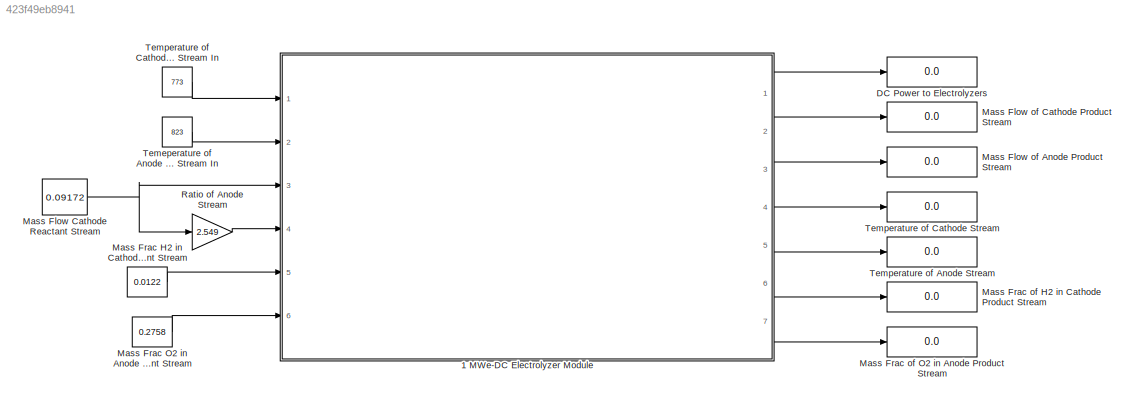
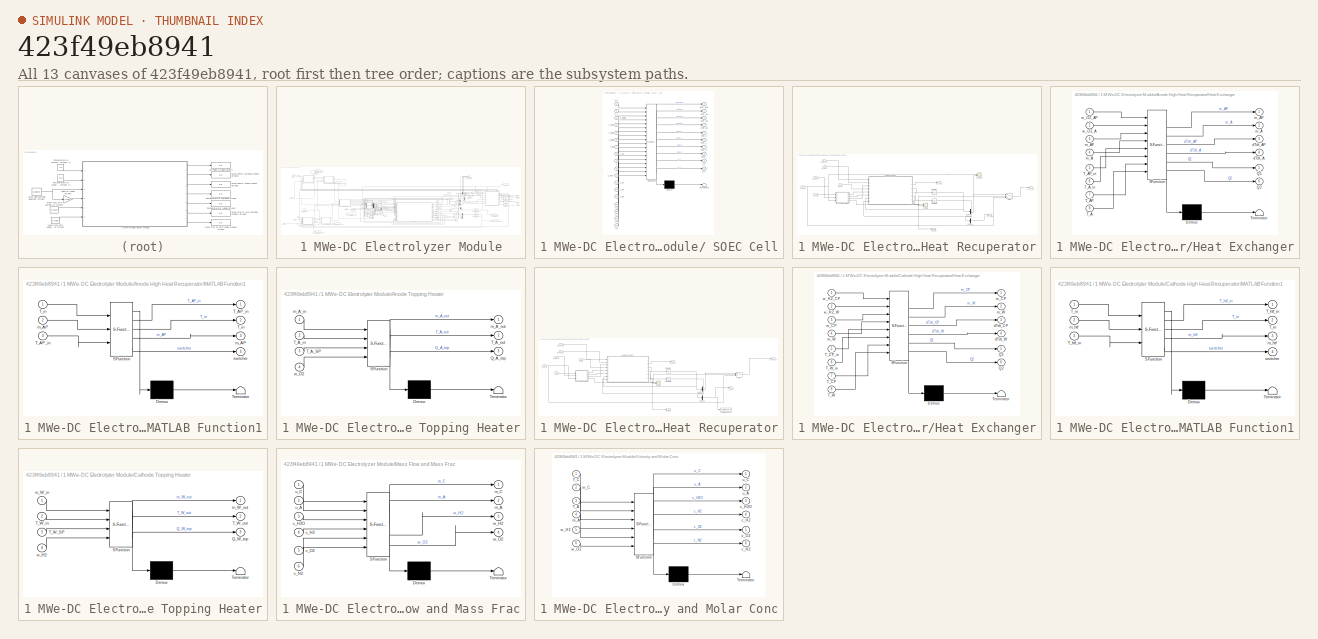
[diagram: thumbnail index - all 13 canvases of the model, root first then tree order]
MODEL slx_423f49eb8941
KIND model
CONFIG AbsTol = auto
CONFIG EnableMultiTasking = off
CONFIG FixedStep = auto
CONFIG MaxStep = auto
CONFIG MinStep = auto
CONFIG RelTol = 1e-3
CONFIG SampleTimeConstraint = Unconstrained
CONFIG SolverName = ode15s
CONFIG StartTime = 0.0
CONFIG StopTime = 3600*nhrssim
WORKSPACE source: external: MAT-File  (data not in archive)
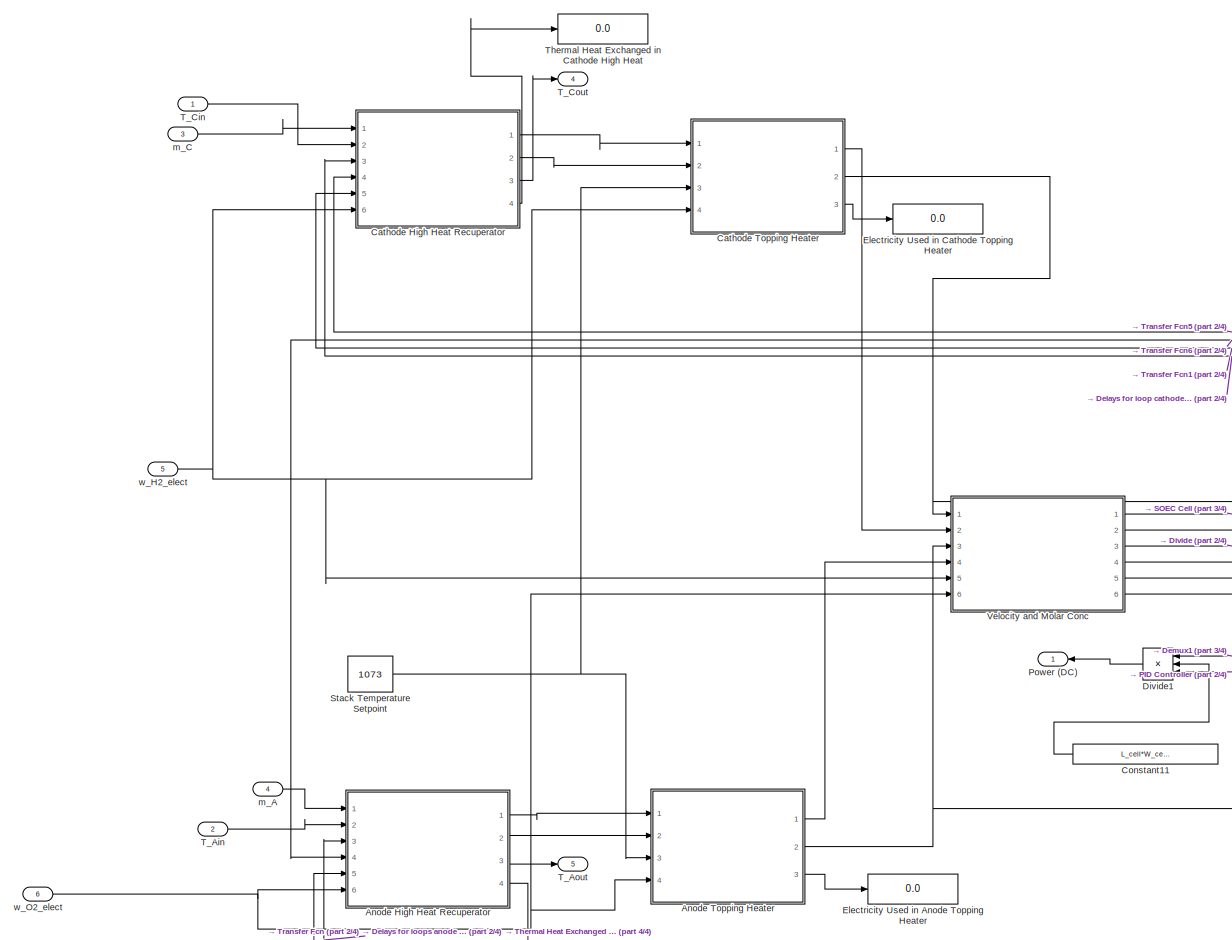
[diagram: 1 MWe-DC Electrolyzer Module - part 1/4, left side, full height]
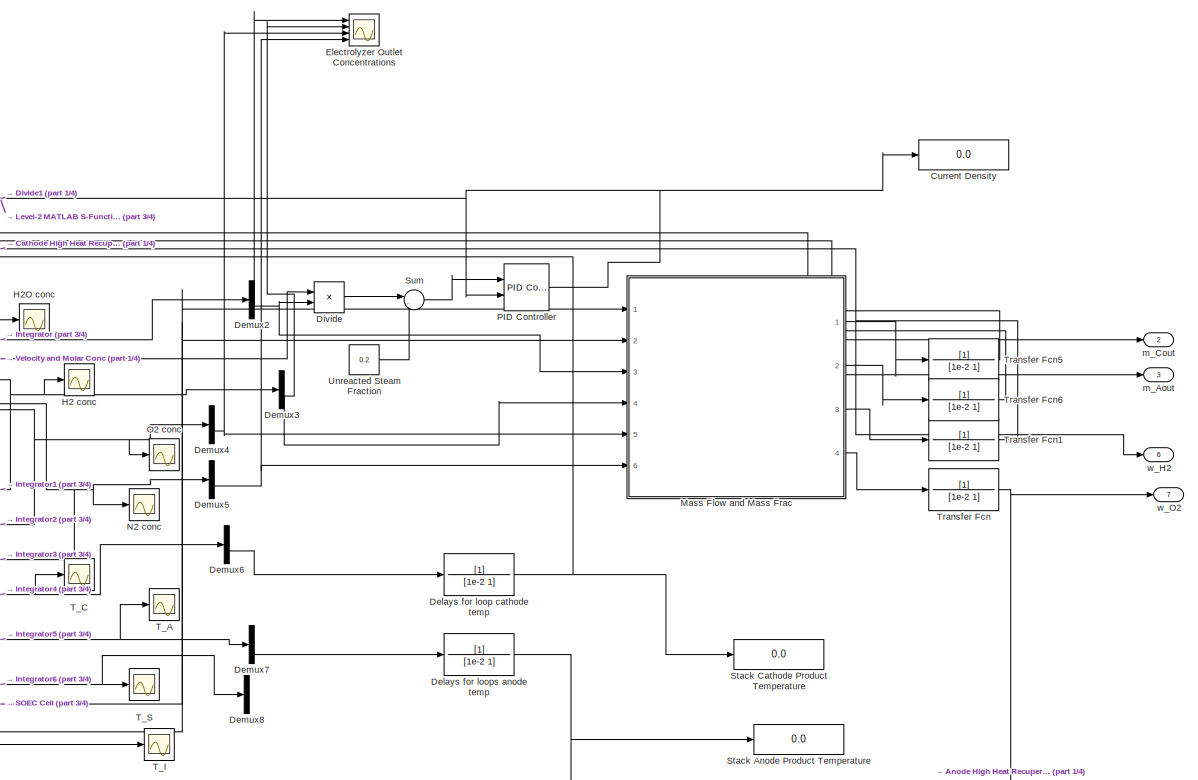
[diagram: 1 MWe-DC Electrolyzer Module - part 2/4, middle right region]
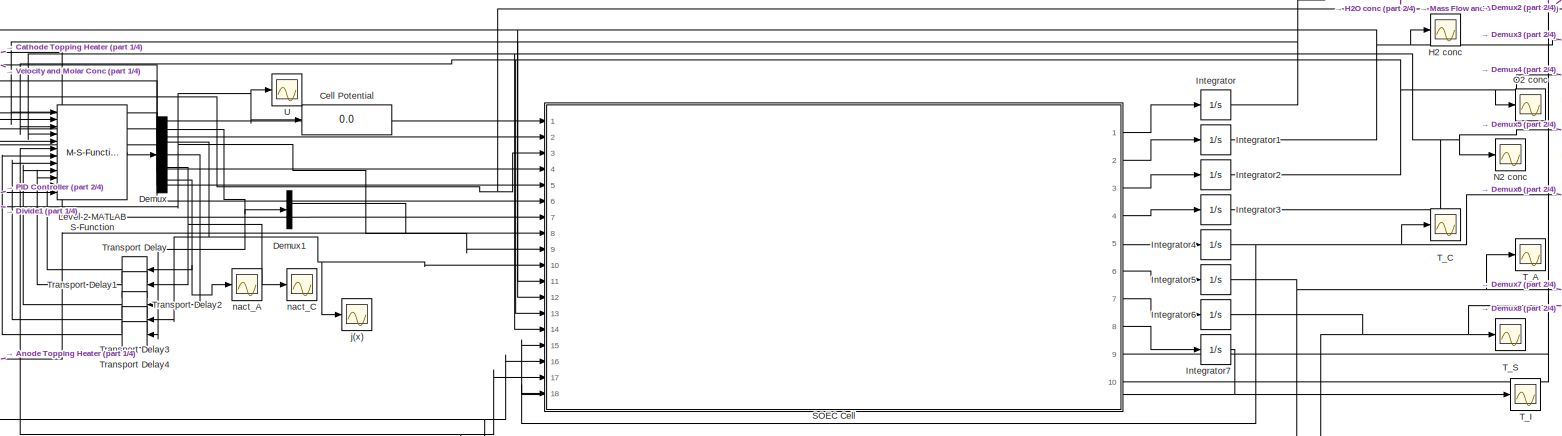
[diagram: 1 MWe-DC Electrolyzer Module - part 3/4, central region]
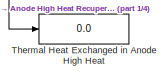
[diagram: 1 MWe-DC Electrolyzer Module - part 4/4, bottom left region]
BLOCK [SubSystem] 1 MWe-DC Electrolyzer Module
  Ports = [6, 7]
  RequestExecContextInheritance = off
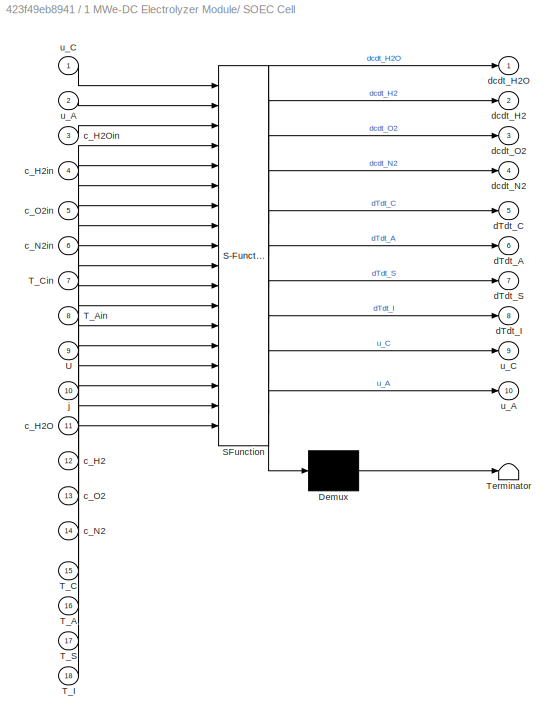
BLOCK [SubSystem] 1 MWe-DC Electrolyzer Module/ SOEC Cell
  ErrorFcn = Stateflow.Translate.translate
  PermitHierarchicalResolution = ExplicitOnly
  Ports = [18, 10]
  RequestExecContextInheritance = off
  SFBlockType = MATLAB Function
  TreatAsAtomicUnit = on
BLOCK [Demux] 1 MWe-DC Electrolyzer Module/ SOEC Cell/ Demux 
  Outputs = 1
  Ports = [1, 1]
BLOCK [S-Function] 1 MWe-DC Electrolyzer Module/ SOEC Cell/ SFunction 
  EnableBusSupport = on
  FunctionName = sf_sfun
  Parameters = Cp_I,Cp_S,F,MM_H2,MM_H2O,MM_N2,MM_O2,dx_cell,eps_I,eps_S,h_A,h_C,h_I,h_S,k_A,k_C,lam_I,lam_S,n_cell,rho_I,rho_S,sig
  PortCounts = [18 11]
  Ports = [18, 11]
  SFcnIsStateOwnerBlock = off
  SFunctionDeploymentMode = off
  Tag = Stateflow S-Function 2
BLOCK [Terminator] 1 MWe-DC Electrolyzer Module/ SOEC Cell/ Terminator 
BLOCK [Inport] 1 MWe-DC Electrolyzer Module/ SOEC Cell/T_A
  Port = 16
BLOCK [Inport] 1 MWe-DC Electrolyzer Module/ SOEC Cell/T_Ain
  Port = 8
BLOCK [Inport] 1 MWe-DC Electrolyzer Module/ SOEC Cell/T_C
  Port = 15
BLOCK [Inport] 1 MWe-DC Electrolyzer Module/ SOEC Cell/T_Cin
  Port = 7
BLOCK [Inport] 1 MWe-DC Electrolyzer Module/ SOEC Cell/T_I
  Port = 18
BLOCK [Inport] 1 MWe-DC Electrolyzer Module/ SOEC Cell/T_S
  Port = 17
BLOCK [Inport] 1 MWe-DC Electrolyzer Module/ SOEC Cell/U
  Port = 9
BLOCK [Inport] 1 MWe-DC Electrolyzer Module/ SOEC Cell/c_H2
  Port = 12
BLOCK [Inport] 1 MWe-DC Electrolyzer Module/ SOEC Cell/c_H2O
  Port = 11
BLOCK [Inport] 1 MWe-DC Electrolyzer Module/ SOEC Cell/c_H2Oin
  Port = 3
BLOCK [Inport] 1 MWe-DC Electrolyzer Module/ SOEC Cell/c_H2in
  Port = 4
BLOCK [Inport] 1 MWe-DC Electrolyzer Module/ SOEC Cell/c_N2
  Port = 14
BLOCK [Inport] 1 MWe-DC Electrolyzer Module/ SOEC Cell/c_N2in
  Port = 6
BLOCK [Inport] 1 MWe-DC Electrolyzer Module/ SOEC Cell/c_O2
  Port = 13
BLOCK [Inport] 1 MWe-DC Electrolyzer Module/ SOEC Cell/c_O2in
  Port = 5
BLOCK [Outport] 1 MWe-DC Electrolyzer Module/ SOEC Cell/dTdt_A
  Port = 6
BLOCK [Outport] 1 MWe-DC Electrolyzer Module/ SOEC Cell/dTdt_C
  Port = 5
BLOCK [Outport] 1 MWe-DC Electrolyzer Module/ SOEC Cell/dTdt_I
  Port = 8
BLOCK [Outport] 1 MWe-DC Electrolyzer Module/ SOEC Cell/dTdt_S
  Port = 7
BLOCK [Outport] 1 MWe-DC Electrolyzer Module/ SOEC Cell/dcdt_H2
  Port = 2
BLOCK [Outport] 1 MWe-DC Electrolyzer Module/ SOEC Cell/dcdt_H2O
BLOCK [Outport] 1 MWe-DC Electrolyzer Module/ SOEC Cell/dcdt_N2
  Port = 4
BLOCK [Outport] 1 MWe-DC Electrolyzer Module/ SOEC Cell/dcdt_O2
  Port = 3
BLOCK [Inport] 1 MWe-DC Electrolyzer Module/ SOEC Cell/j
  Port = 10
BLOCK [Outport] 1 MWe-DC Electrolyzer Module/ SOEC Cell/u_A
  Port = 10
BLOCK [Inport] 1 MWe-DC Electrolyzer Module/ SOEC Cell/u_A 
  Port = 2
BLOCK [Outport] 1 MWe-DC Electrolyzer Module/ SOEC Cell/u_C
  Port = 9
BLOCK [Inport] 1 MWe-DC Electrolyzer Module/ SOEC Cell/u_C 
BLOCK [SubSystem] 1 MWe-DC Electrolyzer Module/Anode High Heat Recuperator
  Ports = [6, 4]
  RequestExecContextInheritance = off
BLOCK [Demux] 1 MWe-DC Electrolyzer Module/Anode High Heat Recuperator/Demux
  Outputs = [nhx_aHR-1 1]
  Ports = [1, 2]
BLOCK [Demux] 1 MWe-DC Electrolyzer Module/Anode High Heat Recuperator/Demux1
  Outputs = [1 nhx_aHR-1]
  Ports = [1, 2]
BLOCK [SubSystem] 1 MWe-DC Electrolyzer Module/Anode High Heat Recuperator/Heat Exchanger
  ErrorFcn = Stateflow.Translate.translate
  PermitHierarchicalResolution = ExplicitOnly
  Ports = [8, 6]
  RequestExecContextInheritance = off
  SFBlockType = MATLAB Function
  TreatAsAtomicUnit = on
BLOCK [Demux] 1 MWe-DC Electrolyzer Module/Anode High Heat Recuperator/Heat Exchanger/ Demux 
  Outputs = 1
  Ports = [1, 1]
BLOCK [S-Function] 1 MWe-DC Electrolyzer Module/Anode High Heat Recuperator/Heat Exchanger/ SFunction 
  EnableBusSupport = on
  FunctionName = sf_sfun
  Parameters = Acsflow_aHR,Anode_aHR,C1,Dtubei,Dtubeo,St,V_shell_aHR,V_tubes_aHR,ktube,m,nhx_aHR,ntubes,ttube
  PortCounts = [8 7]
  Ports = [8, 7]
  SFcnIsStateOwnerBlock = off
  SFunctionDeploymentMode = off
  Tag = Stateflow S-Function 8
BLOCK [Terminator] 1 MWe-DC Electrolyzer Module/Anode High Heat Recuperator/Heat Exchanger/ Terminator 
BLOCK [Outport] 1 MWe-DC Electrolyzer Module/Anode High Heat Recuperator/Heat Exchanger/Q1
  Port = 5
BLOCK [Outport] 1 MWe-DC Electrolyzer Module/Anode High Heat Recuperator/Heat Exchanger/Q2
  Port = 6
BLOCK [Inport] 1 MWe-DC Electrolyzer Module/Anode High Heat Recuperator/Heat Exchanger/T_A
  Port = 8
BLOCK [Inport] 1 MWe-DC Electrolyzer Module/Anode High Heat Recuperator/Heat Exchanger/T_AP
  Port = 7
BLOCK [Inport] 1 MWe-DC Electrolyzer Module/Anode High Heat Recuperator/Heat Exchanger/T_AP_in
  Port = 5
BLOCK [Inport] 1 MWe-DC Electrolyzer Module/Anode High Heat Recuperator/Heat Exchanger/T_A_in
  Port = 6
BLOCK [Outport] 1 MWe-DC Electrolyzer Module/Anode High Heat Recuperator/Heat Exchanger/dTdt_A
  Port = 4
BLOCK [Outport] 1 MWe-DC Electrolyzer Module/Anode High Heat Recuperator/Heat Exchanger/dTdt_AP
  Port = 3
BLOCK [Outport] 1 MWe-DC Electrolyzer Module/Anode High Heat Recuperator/Heat Exchanger/m_A
  Port = 2
BLOCK [Inport] 1 MWe-DC Electrolyzer Module/Anode High Heat Recuperator/Heat Exchanger/m_A 
  Port = 4
BLOCK [Outport] 1 MWe-DC Electrolyzer Module/Anode High Heat Recuperator/Heat Exchanger/m_AP
BLOCK [Inport] 1 MWe-DC Electrolyzer Module/Anode High Heat Recuperator/Heat Exchanger/m_AP 
  Port = 3
BLOCK [Inport] 1 MWe-DC Electrolyzer Module/Anode High Heat Recuperator/Heat Exchanger/w_O2_A
  Port = 2
BLOCK [Inport] 1 MWe-DC Electrolyzer Module/Anode High Heat Recuperator/Heat Exchanger/w_O2_AP
BLOCK [Integrator] 1 MWe-DC Electrolyzer Module/Anode High Heat Recuperator/Integrator
  InitialCondition = ones(nhx_aHR, 1)*(T_aSHout)
  Ports = [1, 1]
BLOCK [Integrator] 1 MWe-DC Electrolyzer Module/Anode High Heat Recuperator/Integrator1
  InitialCondition = ones(nhx_aHR, 1)*(T_aSHout)
  Ports = [1, 1]
BLOCK [SubSystem] 1 MWe-DC Electrolyzer Module/Anode High Heat Recuperator/MATLAB Function1
  ErrorFcn = Stateflow.Translate.translate
  PermitHierarchicalResolution = ExplicitOnly
  Ports = [3, 4]
  RequestExecContextInheritance = off
  SFBlockType = MATLAB Function
  TreatAsAtomicUnit = on
BLOCK [Demux] 1 MWe-DC Electrolyzer Module/Anode High Heat Recuperator/MATLAB Function1/ Demux 
  Outputs = 1
  Ports = [1, 1]
BLOCK [S-Function] 1 MWe-DC Electrolyzer Module/Anode High Heat Recuperator/MATLAB Function1/ SFunction 
  EnableBusSupport = on
  FunctionName = sf_sfun
  PortCounts = [3 5]
  Ports = [3, 5]
  SFcnIsStateOwnerBlock = off
  SFunctionDeploymentMode = off
  Tag = Stateflow S-Function 9
BLOCK [Terminator] 1 MWe-DC Electrolyzer Module/Anode High Heat Recuperator/MATLAB Function1/ Terminator 
BLOCK [Outport] 1 MWe-DC Electrolyzer Module/Anode High Heat Recuperator/MATLAB Function1/T_AP_in
BLOCK [Inport] 1 MWe-DC Electrolyzer Module/Anode High Heat Recuperator/MATLAB Function1/T_AP_in 
  Port = 3
BLOCK [Outport] 1 MWe-DC Electrolyzer Module/Anode High Heat Recuperator/MATLAB Function1/T_in
  Port = 2
BLOCK [Inport] 1 MWe-DC Electrolyzer Module/Anode High Heat Recuperator/MATLAB Function1/T_in 
BLOCK [Outport] 1 MWe-DC Electrolyzer Module/Anode High Heat Recuperator/MATLAB Function1/m_AP
  Port = 3
BLOCK [Inport] 1 MWe-DC Electrolyzer Module/Anode High Heat Recuperator/MATLAB Function1/m_AP 
  Port = 2
BLOCK [Outport] 1 MWe-DC Electrolyzer Module/Anode High Heat Recuperator/MATLAB Function1/switcher
  Port = 4
BLOCK [Outport] 1 MWe-DC Electrolyzer Module/Anode High Heat Recuperator/Q_aHR
  Port = 4
BLOCK [Scope] 1 MWe-DC Electrolyzer Module/Anode High Heat Recuperator/Scope
  Floating = off
  NumInputPorts = 2
  Ports = [2]
  ScopeSpecificationString = Simulink.scopes.TimeScopeBlockCfg('CurrentConfiguration', extmgr.ConfigurationSet(extmgr.Configuration('Core','General UI',true),extmgr.Configuration('Core','Source UI',true),extmgr.Configuration('Sources','WiredSimulink',true,'DataLoggingVariableName','ScopeData6'),extmgr.Configuration('Visuals','Time Domain',true,'SerializedDisplays',{struct('MinYLimReal','1.5098','MaxYLimReal','9.38009','YLabel...<+1467ch>
BLOCK [Scope] 1 MWe-DC Electrolyzer Module/Anode High Heat Recuperator/Scope5
  Floating = off
  NumInputPorts = 2
  Ports = [2]
  ScopeSpecificationString = Simulink.scopes.TimeScopeBlockCfg('CurrentConfiguration', extmgr.ConfigurationSet(extmgr.Configuration('Core','General UI',true),extmgr.Configuration('Core','Source UI',true),extmgr.Configuration('Sources','WiredSimulink',true,'DataLoggingVariableName','ScopeData3'),extmgr.Configuration('Visuals','Time Domain',true,'SerializedDisplays',{struct('MinYLimReal','498.51328','MaxYLimReal','1136.83186','...<+1471ch>
BLOCK [Switch] 1 MWe-DC Electrolyzer Module/Anode High Heat Recuperator/Switch
  Criteria = u2 > Threshold
  InputSameDT = off
  SaturateOnIntegerOverflow = off
BLOCK [Inport] 1 MWe-DC Electrolyzer Module/Anode High Heat Recuperator/T_AP_in
  Port = 3
BLOCK [Outport] 1 MWe-DC Electrolyzer Module/Anode High Heat Recuperator/T_AP_out
  Port = 3
BLOCK [Inport] 1 MWe-DC Electrolyzer Module/Anode High Heat Recuperator/T_A_in
  Port = 2
BLOCK [Outport] 1 MWe-DC Electrolyzer Module/Anode High Heat Recuperator/T_A_out
  Port = 2
BLOCK [Inport] 1 MWe-DC Electrolyzer Module/Anode High Heat Recuperator/m_AP_in 
  NameLocation = top
  Port = 4
BLOCK [Outport] 1 MWe-DC Electrolyzer Module/Anode High Heat Recuperator/m_A_out
BLOCK [Inport] 1 MWe-DC Electrolyzer Module/Anode High Heat Recuperator/m_Ain 
BLOCK [Inport] 1 MWe-DC Electrolyzer Module/Anode High Heat Recuperator/w_O2_A
  NameLocation = top
  Port = 6
BLOCK [Inport] 1 MWe-DC Electrolyzer Module/Anode High Heat Recuperator/w_O2_AP
  NameLocation = top
  Port = 5
BLOCK [SubSystem] 1 MWe-DC Electrolyzer Module/Anode Topping Heater
  ErrorFcn = Stateflow.Translate.translate
  PermitHierarchicalResolution = ExplicitOnly
  Ports = [4, 3]
  RequestExecContextInheritance = off
  SFBlockType = MATLAB Function
  TreatAsAtomicUnit = on
BLOCK [Demux] 1 MWe-DC Electrolyzer Module/Anode Topping Heater/ Demux 
  Outputs = 1
  Ports = [1, 1]
BLOCK [S-Function] 1 MWe-DC Electrolyzer Module/Anode Topping Heater/ SFunction 
  EnableBusSupport = on
  FunctionName = sf_sfun
  Parameters = eta_elec
  PortCounts = [4 4]
  Ports = [4, 4]
  SFcnIsStateOwnerBlock = off
  SFunctionDeploymentMode = off
  Tag = Stateflow S-Function 13
BLOCK [Terminator] 1 MWe-DC Electrolyzer Module/Anode Topping Heater/ Terminator 
BLOCK [Outport] 1 MWe-DC Electrolyzer Module/Anode Topping Heater/Q_A_top
  Port = 3
BLOCK [Inport] 1 MWe-DC Electrolyzer Module/Anode Topping Heater/T_A_SP
  Port = 3
BLOCK [Inport] 1 MWe-DC Electrolyzer Module/Anode Topping Heater/T_A_in
  Port = 2
BLOCK [Outport] 1 MWe-DC Electrolyzer Module/Anode Topping Heater/T_A_out
  Port = 2
BLOCK [Inport] 1 MWe-DC Electrolyzer Module/Anode Topping Heater/m_A_in
BLOCK [Outport] 1 MWe-DC Electrolyzer Module/Anode Topping Heater/m_A_out
BLOCK [Inport] 1 MWe-DC Electrolyzer Module/Anode Topping Heater/w_O2
  Port = 4
BLOCK [SubSystem] 1 MWe-DC Electrolyzer Module/Cathode High Heat Recuperator
  Ports = [6, 4]
  RequestExecContextInheritance = off
BLOCK [Demux] 1 MWe-DC Electrolyzer Module/Cathode High Heat Recuperator/Demux
  Outputs = [nhx_wHR-1 1]
  Ports = [1, 2]
BLOCK [Demux] 1 MWe-DC Electrolyzer Module/Cathode High Heat Recuperator/Demux1
  Outputs = [1 nhx_wHR-1]
  Ports = [1, 2]
BLOCK [SubSystem] 1 MWe-DC Electrolyzer Module/Cathode High Heat Recuperator/Heat Exchanger
  ErrorFcn = Stateflow.Translate.translate
  PermitHierarchicalResolution = ExplicitOnly
  Ports = [8, 6]
  RequestExecContextInheritance = off
  SFBlockType = MATLAB Function
  TreatAsAtomicUnit = on
BLOCK [Demux] 1 MWe-DC Electrolyzer Module/Cathode High Heat Recuperator/Heat Exchanger/ Demux 
  Outputs = 1
  Ports = [1, 1]
BLOCK [S-Function] 1 MWe-DC Electrolyzer Module/Cathode High Heat Recuperator/Heat Exchanger/ SFunction 
  EnableBusSupport = on
  FunctionName = sf_sfun
  Parameters = Acsflow_wHR,Anode_wHR,C1,Dtubei,Dtubeo,St,V_shell_wHR,V_tubes_wHR,ktube,m,nhx_wHR,ntubes,ttube
  PortCounts = [8 7]
  Ports = [8, 7]
  SFcnIsStateOwnerBlock = off
  SFunctionDeploymentMode = off
  Tag = Stateflow S-Function 6
BLOCK [Terminator] 1 MWe-DC Electrolyzer Module/Cathode High Heat Recuperator/Heat Exchanger/ Terminator 
BLOCK [Outport] 1 MWe-DC Electrolyzer Module/Cathode High Heat Recuperator/Heat Exchanger/Q1
  Port = 5
BLOCK [Outport] 1 MWe-DC Electrolyzer Module/Cathode High Heat Recuperator/Heat Exchanger/Q2
  Port = 6
BLOCK [Inport] 1 MWe-DC Electrolyzer Module/Cathode High Heat Recuperator/Heat Exchanger/T_CP
  Port = 7
BLOCK [Inport] 1 MWe-DC Electrolyzer Module/Cathode High Heat Recuperator/Heat Exchanger/T_CP_in
  Port = 5
BLOCK [Inport] 1 MWe-DC Electrolyzer Module/Cathode High Heat Recuperator/Heat Exchanger/T_W
  Port = 8
BLOCK [Inport] 1 MWe-DC Electrolyzer Module/Cathode High Heat Recuperator/Heat Exchanger/T_W_in
  Port = 6
BLOCK [Outport] 1 MWe-DC Electrolyzer Module/Cathode High Heat Recuperator/Heat Exchanger/dTdt_CP
  Port = 3
BLOCK [Outport] 1 MWe-DC Electrolyzer Module/Cathode High Heat Recuperator/Heat Exchanger/dTdt_W
  Port = 4
BLOCK [Outport] 1 MWe-DC Electrolyzer Module/Cathode High Heat Recuperator/Heat Exchanger/m_CP
BLOCK [Inport] 1 MWe-DC Electrolyzer Module/Cathode High Heat Recuperator/Heat Exchanger/m_CP 
  Port = 3
BLOCK [Outport] 1 MWe-DC Electrolyzer Module/Cathode High Heat Recuperator/Heat Exchanger/m_W
  Port = 2
BLOCK [Inport] 1 MWe-DC Electrolyzer Module/Cathode High Heat Recuperator/Heat Exchanger/m_W 
  Port = 4
BLOCK [Inport] 1 MWe-DC Electrolyzer Module/Cathode High Heat Recuperator/Heat Exchanger/w_H2_CP
BLOCK [Inport] 1 MWe-DC Electrolyzer Module/Cathode High Heat Recuperator/Heat Exchanger/w_H2_W
  Port = 2
BLOCK [Integrator] 1 MWe-DC Electrolyzer Module/Cathode High Heat Recuperator/Integrator
  InitialCondition = ones(nhx_wHR, 1)*(T_wSHout)
  Ports = [1, 1]
BLOCK [Integrator] 1 MWe-DC Electrolyzer Module/Cathode High Heat Recuperator/Integrator1
  InitialCondition = ones(nhx_wHR, 1)*(T_wSHout)
  Ports = [1, 1]
BLOCK [SubSystem] 1 MWe-DC Electrolyzer Module/Cathode High Heat Recuperator/MATLAB Function1
  ErrorFcn = Stateflow.Translate.translate
  PermitHierarchicalResolution = ExplicitOnly
  Ports = [3, 4]
  RequestExecContextInheritance = off
  SFBlockType = MATLAB Function
  TreatAsAtomicUnit = on
BLOCK [Demux] 1 MWe-DC Electrolyzer Module/Cathode High Heat Recuperator/MATLAB Function1/ Demux 
  Outputs = 1
  Ports = [1, 1]
BLOCK [S-Function] 1 MWe-DC Electrolyzer Module/Cathode High Heat Recuperator/MATLAB Function1/ SFunction 
  EnableBusSupport = on
  FunctionName = sf_sfun
  PortCounts = [3 5]
  Ports = [3, 5]
  SFcnIsStateOwnerBlock = off
  SFunctionDeploymentMode = off
  Tag = Stateflow S-Function 7
BLOCK [Terminator] 1 MWe-DC Electrolyzer Module/Cathode High Heat Recuperator/MATLAB Function1/ Terminator 
BLOCK [Outport] 1 MWe-DC Electrolyzer Module/Cathode High Heat Recuperator/MATLAB Function1/T_htf_in
BLOCK [Inport] 1 MWe-DC Electrolyzer Module/Cathode High Heat Recuperator/MATLAB Function1/T_htf_in 
  Port = 3
BLOCK [Outport] 1 MWe-DC Electrolyzer Module/Cathode High Heat Recuperator/MATLAB Function1/T_in
  Port = 2
BLOCK [Inport] 1 MWe-DC Electrolyzer Module/Cathode High Heat Recuperator/MATLAB Function1/T_in 
BLOCK [Outport] 1 MWe-DC Electrolyzer Module/Cathode High Heat Recuperator/MATLAB Function1/m_htf
  Port = 3
BLOCK [Inport] 1 MWe-DC Electrolyzer Module/Cathode High Heat Recuperator/MATLAB Function1/m_htf 
  Port = 2
BLOCK [Outport] 1 MWe-DC Electrolyzer Module/Cathode High Heat Recuperator/MATLAB Function1/switcher
  Port = 4
BLOCK [Outport] 1 MWe-DC Electrolyzer Module/Cathode High Heat Recuperator/Q_wHR
  Port = 4
BLOCK [Scope] 1 MWe-DC Electrolyzer Module/Cathode High Heat Recuperator/Scope
  Floating = off
  NumInputPorts = 2
  Ports = [2]
  ScopeSpecificationString = Simulink.scopes.TimeScopeBlockCfg('CurrentConfiguration', extmgr.ConfigurationSet(extmgr.Configuration('Core','General UI',true),extmgr.Configuration('Core','Source UI',true),extmgr.Configuration('Sources','WiredSimulink',true,'DataLoggingVariableName','ScopeData6'),extmgr.Configuration('Visuals','Time Domain',true,'SerializedDisplays',{struct('MinYLimReal','1.81966','MaxYLimReal','15.2379','YLabe...<+1467ch>
BLOCK [Switch] 1 MWe-DC Electrolyzer Module/Cathode High Heat Recuperator/Switch
  Criteria = u2 > Threshold
  InputSameDT = off
  SaturateOnIntegerOverflow = off
BLOCK [Inport] 1 MWe-DC Electrolyzer Module/Cathode High Heat Recuperator/T_CP_in
  Port = 3
BLOCK [Outport] 1 MWe-DC Electrolyzer Module/Cathode High Heat Recuperator/T_CP_out
  Port = 3
BLOCK [Inport] 1 MWe-DC Electrolyzer Module/Cathode High Heat Recuperator/T_W_in
  Port = 2
BLOCK [Outport] 1 MWe-DC Electrolyzer Module/Cathode High Heat Recuperator/T_W_out
  Port = 2
BLOCK [ToWorkspace] 1 MWe-DC Electrolyzer Module/Cathode High Heat Recuperator/To Workspace1
  FixptAsFi = on
  MaxDataPoints = inf
  Ports = [1]
  SampleTime = -1
  SaveFormat = Timeseries
  VariableName = T_Win_top
BLOCK [Inport] 1 MWe-DC Electrolyzer Module/Cathode High Heat Recuperator/m_CP_in 
  NameLocation = top
  Port = 4
BLOCK [Outport] 1 MWe-DC Electrolyzer Module/Cathode High Heat Recuperator/m_W_out
BLOCK [Inport] 1 MWe-DC Electrolyzer Module/Cathode High Heat Recuperator/m_Win 
BLOCK [Inport] 1 MWe-DC Electrolyzer Module/Cathode High Heat Recuperator/w_H2_CP
  NameLocation = top
  Port = 5
BLOCK [Inport] 1 MWe-DC Electrolyzer Module/Cathode High Heat Recuperator/w_H2_W
  NameLocation = top
  Port = 6
BLOCK [SubSystem] 1 MWe-DC Electrolyzer Module/Cathode Topping Heater
  ErrorFcn = Stateflow.Translate.translate
  PermitHierarchicalResolution = ExplicitOnly
  Ports = [4, 3]
  RequestExecContextInheritance = off
  SFBlockType = MATLAB Function
  TreatAsAtomicUnit = on
BLOCK [Demux] 1 MWe-DC Electrolyzer Module/Cathode Topping Heater/ Demux 
  Outputs = 1
  Ports = [1, 1]
BLOCK [S-Function] 1 MWe-DC Electrolyzer Module/Cathode Topping Heater/ SFunction 
  EnableBusSupport = on
  FunctionName = sf_sfun
  Parameters = eta_elec
  PortCounts = [4 4]
  Ports = [4, 4]
  SFcnIsStateOwnerBlock = off
  SFunctionDeploymentMode = off
  Tag = Stateflow S-Function 14
BLOCK [Terminator] 1 MWe-DC Electrolyzer Module/Cathode Topping Heater/ Terminator 
BLOCK [Outport] 1 MWe-DC Electrolyzer Module/Cathode Topping Heater/Q_W_top
  Port = 3
BLOCK [Inport] 1 MWe-DC Electrolyzer Module/Cathode Topping Heater/T_W_SP
  Port = 3
BLOCK [Inport] 1 MWe-DC Electrolyzer Module/Cathode Topping Heater/T_W_in
  Port = 2
BLOCK [Outport] 1 MWe-DC Electrolyzer Module/Cathode Topping Heater/T_W_out
  Port = 2
BLOCK [Inport] 1 MWe-DC Electrolyzer Module/Cathode Topping Heater/m_W_in
BLOCK [Outport] 1 MWe-DC Electrolyzer Module/Cathode Topping Heater/m_W_out
BLOCK [Inport] 1 MWe-DC Electrolyzer Module/Cathode Topping Heater/w_H2
  Port = 4
BLOCK [Display] 1 MWe-DC Electrolyzer Module/Cell Potential
  Decimation = 1
  Ports = [1]
BLOCK [Constant] 1 MWe-DC Electrolyzer Module/Constant11
  Value = L_cell*W_cell*num_cells/1e6
BLOCK [Display] 1 MWe-DC Electrolyzer Module/Current Density
  Decimation = 1
  Ports = [1]
BLOCK [TransferFcn] 1 MWe-DC Electrolyzer Module/Delays for loop cathode temp
  Denominator = [1e-2 1]
BLOCK [TransferFcn] 1 MWe-DC Electrolyzer Module/Delays for loops anode temp
  Denominator = [1e-2 1]
BLOCK [Demux] 1 MWe-DC Electrolyzer Module/Demux
  Outputs = [n_cell n_cell n_cell n_cell n_cell ]
  Ports = [1, 5]
BLOCK [Demux] 1 MWe-DC Electrolyzer Module/Demux1
  Outputs = [1 n_cell-1]
  Ports = [1, 2]
BLOCK [Demux] 1 MWe-DC Electrolyzer Module/Demux2
  Outputs = [n_cell-1 1]
  Ports = [1, 2]
BLOCK [Demux] 1 MWe-DC Electrolyzer Module/Demux3
  Outputs = [n_cell-1 1]
  Ports = [1, 2]
BLOCK [Demux] 1 MWe-DC Electrolyzer Module/Demux4
  Outputs = [n_cell-1 1]
  Ports = [1, 2]
BLOCK [Demux] 1 MWe-DC Electrolyzer Module/Demux5
  Outputs = [n_cell-1 1]
  Ports = [1, 2]
BLOCK [Demux] 1 MWe-DC Electrolyzer Module/Demux6
  Outputs = [n_cell-1 1]
  Ports = [1, 2]
BLOCK [Demux] 1 MWe-DC Electrolyzer Module/Demux7
  Outputs = [n_cell-1 1]
  Ports = [1, 2]
BLOCK [Demux] 1 MWe-DC Electrolyzer Module/Demux8
  Outputs = [n_cell-1 1]
  Ports = [1, 2]
BLOCK [Product] 1 MWe-DC Electrolyzer Module/Divide
  Inputs = /*
  Ports = [2, 1]
BLOCK [Product] 1 MWe-DC Electrolyzer Module/Divide1
  Inputs = ***
  Ports = [3, 1]
BLOCK [Display] 1 MWe-DC Electrolyzer Module/Electricity Used in Anode Topping Heater
  Decimation = 1
  Ports = [1]
BLOCK [Display] 1 MWe-DC Electrolyzer Module/Electricity Used in Cathode Topping Heater
  Decimation = 1
  Ports = [1]
BLOCK [Scope] 1 MWe-DC Electrolyzer Module/Electrolyzer Outlet Concentrations
  Floating = off
  NumInputPorts = 4
  Ports = [4]
  ScopeSpecificationString = Simulink.scopes.TimeScopeBlockCfg('CurrentConfiguration', extmgr.ConfigurationSet(extmgr.Configuration('Core','General UI',true),extmgr.Configuration('Core','Source UI',true),extmgr.Configuration('Sources','WiredSimulink',true,'DataLoggingVariableName','ScopeData1'),extmgr.Configuration('Visuals','Time Domain',true,'SerializedDisplays',{struct('MinYLimReal','5.60429','MaxYLimReal','50.44373','YLab...<+1577ch>
BLOCK [Scope] 1 MWe-DC Electrolyzer Module/H2 conc
  Floating = off
  NumInputPorts = 1
  Ports = [1]
  ScopeSpecificationString = Simulink.scopes.TimeScopeBlockCfg('CurrentConfiguration', extmgr.ConfigurationSet(extmgr.Configuration('Core','General UI',true),extmgr.Configuration('Core','Source UI',true),extmgr.Configuration('Sources','WiredSimulink',true,'DataLoggingVariableName','ScopeData3'),extmgr.Configuration('Visuals','Time Domain',true,'SerializedDisplays',{struct('MinYLimReal','2.99493','MaxYLimReal','58.30418','YLab...<+1786ch>
BLOCK [Scope] 1 MWe-DC Electrolyzer Module/H2O conc
  Floating = off
  NumInputPorts = 1
  Ports = [1]
  ScopeSpecificationString = Simulink.scopes.TimeScopeBlockCfg('CurrentConfiguration', extmgr.ConfigurationSet(extmgr.Configuration('Core','General UI',true),extmgr.Configuration('Core','Source UI',true),extmgr.Configuration('Sources','WiredSimulink',true,'DataLoggingVariableName','ScopeData1'),extmgr.Configuration('Visuals','Time Domain',true,'SerializedDisplays',{struct('MinYLimReal','-5.77662','MaxYLimReal','52.18219','YLa...<+1780ch>
BLOCK [Integrator] 1 MWe-DC Electrolyzer Module/Integrator
  InitialCondition = H2OconcSS
  Ports = [1, 1]
BLOCK [Integrator] 1 MWe-DC Electrolyzer Module/Integrator1
  InitialCondition = H2concSS
  Ports = [1, 1]
BLOCK [Integrator] 1 MWe-DC Electrolyzer Module/Integrator2
  InitialCondition = O2concSS
  Ports = [1, 1]
BLOCK [Integrator] 1 MWe-DC Electrolyzer Module/Integrator3
  InitialCondition = N2concSS
  Ports = [1, 1]
BLOCK [Integrator] 1 MWe-DC Electrolyzer Module/Integrator4
  InitialCondition = T_cell_init*ones(n_cell,1)
  Ports = [1, 1]
BLOCK [Integrator] 1 MWe-DC Electrolyzer Module/Integrator5
  InitialCondition = T_cell_init*ones(n_cell,1)
  Ports = [1, 1]
BLOCK [Integrator] 1 MWe-DC Electrolyzer Module/Integrator6
  InitialCondition = T_cell_init*ones(n_cell,1)
  Ports = [1, 1]
BLOCK [Integrator] 1 MWe-DC Electrolyzer Module/Integrator7
  InitialCondition = T_cell_init*ones(n_cell,1)
  Ports = [1, 1]
BLOCK [M-S-Function] 1 MWe-DC Electrolyzer Module/Level-2 MATLAB S-Function
  FunctionName = eqsolver
  Parameters = n_cell, F, R, t_C, t_E, t_A, sig_C, sig_A, sig_E, A_C, A_A, E_C, E_A, Deff_C, Deff_A, alph, Ppa
  Ports = [12, 1]
BLOCK [SubSystem] 1 MWe-DC Electrolyzer Module/Mass Flow and Mass Frac
  ErrorFcn = Stateflow.Translate.translate
  PermitHierarchicalResolution = ExplicitOnly
  Ports = [6, 4]
  RequestExecContextInheritance = off
  SFBlockType = MATLAB Function
  TreatAsAtomicUnit = on
BLOCK [Demux] 1 MWe-DC Electrolyzer Module/Mass Flow and Mass Frac/ Demux 
  Outputs = 1
  Ports = [1, 1]
BLOCK [S-Function] 1 MWe-DC Electrolyzer Module/Mass Flow and Mass Frac/ SFunction 
  EnableBusSupport = on
  FunctionName = sf_sfun
  Parameters = MM_H2,MM_H2O,MM_N2,MM_O2,W_cell,h_A,h_C,num_cells
  PortCounts = [6 5]
  Ports = [6, 5]
  SFcnIsStateOwnerBlock = off
  SFunctionDeploymentMode = off
  Tag = Stateflow S-Function 3
BLOCK [Terminator] 1 MWe-DC Electrolyzer Module/Mass Flow and Mass Frac/ Terminator 
BLOCK [Inport] 1 MWe-DC Electrolyzer Module/Mass Flow and Mass Frac/c_H2
  Port = 4
BLOCK [Inport] 1 MWe-DC Electrolyzer Module/Mass Flow and Mass Frac/c_H2O
  Port = 3
BLOCK [Inport] 1 MWe-DC Electrolyzer Module/Mass Flow and Mass Frac/c_N2
  Port = 6
BLOCK [Inport] 1 MWe-DC Electrolyzer Module/Mass Flow and Mass Frac/c_O2
  Port = 5
BLOCK [Outport] 1 MWe-DC Electrolyzer Module/Mass Flow and Mass Frac/m_A
  Port = 2
BLOCK [Outport] 1 MWe-DC Electrolyzer Module/Mass Flow and Mass Frac/m_C
BLOCK [Inport] 1 MWe-DC Electrolyzer Module/Mass Flow and Mass Frac/u_A
  Port = 2
BLOCK [Inport] 1 MWe-DC Electrolyzer Module/Mass Flow and Mass Frac/u_C
BLOCK [Outport] 1 MWe-DC Electrolyzer Module/Mass Flow and Mass Frac/w_H2
  Port = 3
BLOCK [Outport] 1 MWe-DC Electrolyzer Module/Mass Flow and Mass Frac/w_O2
  Port = 4
BLOCK [Scope] 1 MWe-DC Electrolyzer Module/N2 conc
  Floating = off
  NumInputPorts = 1
  Ports = [1]
  ScopeSpecificationString = Simulink.scopes.TimeScopeBlockCfg('CurrentConfiguration', extmgr.ConfigurationSet(extmgr.Configuration('Core','General UI',true),extmgr.Configuration('Core','Source UI',true),extmgr.Configuration('Sources','WiredSimulink',true,'DataLoggingVariableName','ScopeData2'),extmgr.Configuration('Visuals','Time Domain',true,'SerializedDisplays',{struct('MinYLimReal','8.90716','MaxYLimReal','9.54365','YLabe...<+1589ch>
BLOCK [Scope] 1 MWe-DC Electrolyzer Module/O2 conc
  Floating = off
  NumInputPorts = 1
  Ports = [1]
  ScopeSpecificationString = Simulink.scopes.TimeScopeBlockCfg('CurrentConfiguration', extmgr.ConfigurationSet(extmgr.Configuration('Core','General UI',true),extmgr.Configuration('Core','Source UI',true),extmgr.Configuration('Sources','WiredSimulink',true,'DataLoggingVariableName','ScopeData1'),extmgr.Configuration('Visuals','Time Domain',true,'SerializedDisplays',{struct('MinYLimReal','13.84183','MaxYLimReal','29.6036','YLab...<+1559ch>
BLOCK [Reference] 1 MWe-DC Electrolyzer Module/PID Controller  REF=pid_lib/PID Controller
  Ports = [2, 1]
  SourceBlock = pid_lib/PID Controller
  SourceProductBaseCode = SL
  SourceType = PID 1dof
BLOCK [Outport] 1 MWe-DC Electrolyzer Module/Power (DC)
BLOCK [Display] 1 MWe-DC Electrolyzer Module/Stack Anode Product Temperature
  Decimation = 1
  Ports = [1]
BLOCK [Display] 1 MWe-DC Electrolyzer Module/Stack Cathode Product Temperature
  Decimation = 1
  Ports = [1]
BLOCK [Constant] 1 MWe-DC Electrolyzer Module/Stack Temperature Setpoint
  Value = 1073
BLOCK [Sum] 1 MWe-DC Electrolyzer Module/Sum
  Inputs = |-+
  Ports = [2, 1]
BLOCK [Scope] 1 MWe-DC Electrolyzer Module/T_A
  Floating = off
  NumInputPorts = 1
  Ports = [1]
  ScopeSpecificationString = Simulink.scopes.TimeScopeBlockCfg('CurrentConfiguration', extmgr.ConfigurationSet(extmgr.Configuration('Core','General UI',true),extmgr.Configuration('Core','Source UI',true),extmgr.Configuration('Sources','WiredSimulink',true,'DataLoggingVariableName','ScopeData1'),extmgr.Configuration('Visuals','Time Domain',true,'SerializedDisplays',{struct('MinYLimReal','1052.83784','MaxYLimReal','1075.24024',...<+1616ch>
BLOCK [Inport] 1 MWe-DC Electrolyzer Module/T_Ain
  Port = 2
BLOCK [Outport] 1 MWe-DC Electrolyzer Module/T_Aout
  Port = 5
BLOCK [Scope] 1 MWe-DC Electrolyzer Module/T_C
  Floating = off
  NumInputPorts = 1
  Ports = [1]
  ScopeSpecificationString = Simulink.scopes.TimeScopeBlockCfg('CurrentConfiguration', extmgr.ConfigurationSet(extmgr.Configuration('Core','General UI',true),extmgr.Configuration('Core','Source UI',true),extmgr.Configuration('Sources','WiredSimulink',true,'DataLoggingVariableName','ScopeData2'),extmgr.Configuration('Visuals','Time Domain',true,'SerializedDisplays',{struct('MinYLimReal','981.93969','MaxYLimReal','1083.19139','...<+1756ch>
BLOCK [Inport] 1 MWe-DC Electrolyzer Module/T_Cin
BLOCK [Outport] 1 MWe-DC Electrolyzer Module/T_Cout
  Port = 4
BLOCK [Scope] 1 MWe-DC Electrolyzer Module/T_I
  Floating = off
  NumInputPorts = 1
  Ports = [1]
  ScopeSpecificationString = Simulink.scopes.TimeScopeBlockCfg('CurrentConfiguration', extmgr.ConfigurationSet(extmgr.Configuration('Core','General UI',true),extmgr.Configuration('Core','Source UI',true),extmgr.Configuration('Sources','WiredSimulink',true,'DataLoggingVariableName','ScopeData3'),extmgr.Configuration('Visuals','Time Domain',true,'SerializedDisplays',{struct('MinYLimReal','1068.29612','MaxYLimReal','1115.33496',...<+1633ch>
BLOCK [Scope] 1 MWe-DC Electrolyzer Module/T_S
  Floating = off
  NumInputPorts = 1
  Ports = [1]
  ScopeSpecificationString = Simulink.scopes.TimeScopeBlockCfg('CurrentConfiguration', extmgr.ConfigurationSet(extmgr.Configuration('Core','General UI',true),extmgr.Configuration('Core','Source UI',true),extmgr.Configuration('Sources','WiredSimulink',true,'DataLoggingVariableName','ScopeData4'),extmgr.Configuration('Visuals','Time Domain',true,'SerializedDisplays',{struct('MinYLimReal','1070.66309','MaxYLimReal','1073.34583',...<+1927ch>
BLOCK [Display] 1 MWe-DC Electrolyzer Module/Thermal Heat Exchanged in Anode High Heat
  Decimation = 1
  Ports = [1]
BLOCK [Display] 1 MWe-DC Electrolyzer Module/Thermal Heat Exchanged in Cathode High Heat
  Decimation = 1
  Ports = [1]
BLOCK [TransferFcn] 1 MWe-DC Electrolyzer Module/Transfer Fcn
  Denominator = [1e-2 1]
BLOCK [TransferFcn] 1 MWe-DC Electrolyzer Module/Transfer Fcn1
  Denominator = [1e-2 1]
BLOCK [TransferFcn] 1 MWe-DC Electrolyzer Module/Transfer Fcn5
  Denominator = [1e-2 1]
BLOCK [TransferFcn] 1 MWe-DC Electrolyzer Module/Transfer Fcn6
  Denominator = [1e-2 1]
BLOCK [TransportDelay] 1 MWe-DC Electrolyzer Module/Transport Delay
  DelayTime = 0.1
  InitialOutput = x0(4*n_cell+1:end)
  Ports = [1, 1]
BLOCK [TransportDelay] 1 MWe-DC Electrolyzer Module/Transport Delay1
  DelayTime = 0.1
  InitialOutput = x0(3*n_cell+1:4*n_cell)
  Ports = [1, 1]
BLOCK [TransportDelay] 1 MWe-DC Electrolyzer Module/Transport Delay2
  DelayTime = 0.1
  InitialOutput = x0(2*n_cell+1:3*n_cell)
  Ports = [1, 1]
BLOCK [TransportDelay] 1 MWe-DC Electrolyzer Module/Transport Delay3
  DelayTime = 0.1
  InitialOutput = x0(n_cell+1:2*n_cell)
  Ports = [1, 1]
BLOCK [TransportDelay] 1 MWe-DC Electrolyzer Module/Transport Delay4
  DelayTime = 0.1
  InitialOutput = x0(1:n_cell)
  Ports = [1, 1]
BLOCK [Scope] 1 MWe-DC Electrolyzer Module/U
  Floating = off
  NumInputPorts = 1
  Ports = [1]
  ScopeSpecificationString = Simulink.scopes.TimeScopeBlockCfg('CurrentConfiguration', extmgr.ConfigurationSet(extmgr.Configuration('Core','General UI',true),extmgr.Configuration('Core','Source UI',true),extmgr.Configuration('Sources','WiredSimulink',true,'DataLoggingVariableName','ScopeData4'),extmgr.Configuration('Visuals','Time Domain',true,'SerializedDisplays',{struct('MinYLimReal','1.28577','MaxYLimReal','1.28836','YLabe...<+1438ch>
BLOCK [Constant] 1 MWe-DC Electrolyzer Module/Unreacted Steam Fraction
  Value = 0.2
BLOCK [SubSystem] 1 MWe-DC Electrolyzer Module/Velocity and Molar Conc
  ErrorFcn = Stateflow.Translate.translate
  PermitHierarchicalResolution = ExplicitOnly
  Ports = [6, 6]
  RequestExecContextInheritance = off
  SFBlockType = MATLAB Function
  TreatAsAtomicUnit = on
BLOCK [Demux] 1 MWe-DC Electrolyzer Module/Velocity and Molar Conc/ Demux 
  Outputs = 1
  Ports = [1, 1]
BLOCK [S-Function] 1 MWe-DC Electrolyzer Module/Velocity and Molar Conc/ SFunction 
  EnableBusSupport = on
  FunctionName = sf_sfun
  Parameters = MM_H2,MM_H2O,MM_N2,MM_O2,Ppa,W_cell,h_A,h_C,num_cells
  PortCounts = [6 7]
  Ports = [6, 7]
  SFcnIsStateOwnerBlock = off
  SFunctionDeploymentMode = off
  Tag = Stateflow S-Function 18
BLOCK [Terminator] 1 MWe-DC Electrolyzer Module/Velocity and Molar Conc/ Terminator 
BLOCK [Inport] 1 MWe-DC Electrolyzer Module/Velocity and Molar Conc/T_A
  Port = 3
BLOCK [Inport] 1 MWe-DC Electrolyzer Module/Velocity and Molar Conc/T_C
BLOCK [Outport] 1 MWe-DC Electrolyzer Module/Velocity and Molar Conc/c_H2
  Port = 4
BLOCK [Outport] 1 MWe-DC Electrolyzer Module/Velocity and Molar Conc/c_H2O
  Port = 3
BLOCK [Outport] 1 MWe-DC Electrolyzer Module/Velocity and Molar Conc/c_N2
  Port = 6
BLOCK [Outport] 1 MWe-DC Electrolyzer Module/Velocity and Molar Conc/c_O2
  Port = 5
BLOCK [Inport] 1 MWe-DC Electrolyzer Module/Velocity and Molar Conc/m_A
  Port = 4
BLOCK [Inport] 1 MWe-DC Electrolyzer Module/Velocity and Molar Conc/m_C
  Port = 2
BLOCK [Outport] 1 MWe-DC Electrolyzer Module/Velocity and Molar Conc/u_A
  Port = 2
BLOCK [Outport] 1 MWe-DC Electrolyzer Module/Velocity and Molar Conc/u_C
BLOCK [Inport] 1 MWe-DC Electrolyzer Module/Velocity and Molar Conc/w_H2
  Port = 5
BLOCK [Inport] 1 MWe-DC Electrolyzer Module/Velocity and Molar Conc/w_O2
  Port = 6
BLOCK [Scope] 1 MWe-DC Electrolyzer Module/j(x)
  Floating = off
  NumInputPorts = 1
  Ports = [1]
  ScopeSpecificationString = Simulink.scopes.TimeScopeBlockCfg('CurrentConfiguration', extmgr.ConfigurationSet(extmgr.Configuration('Core','General UI',true),extmgr.Configuration('Core','Source UI',true),extmgr.Configuration('Sources','WiredSimulink',true,'DataLoggingVariableName','ScopeData6'),extmgr.Configuration('Visuals','Time Domain',true,'SerializedDisplays',{struct('MinYLimReal','-2483.6166','MaxYLimReal','22039.01816'...<+1735ch>
BLOCK [Inport] 1 MWe-DC Electrolyzer Module/m_A
  Port = 4
BLOCK [Outport] 1 MWe-DC Electrolyzer Module/m_Aout
  Port = 3
BLOCK [Inport] 1 MWe-DC Electrolyzer Module/m_C
  Port = 3
BLOCK [Outport] 1 MWe-DC Electrolyzer Module/m_Cout
  Port = 2
BLOCK [Scope] 1 MWe-DC Electrolyzer Module/nact_A
  Floating = off
  NumInputPorts = 1
  Ports = [1]
  ScopeSpecificationString = Simulink.scopes.TimeScopeBlockCfg('CurrentConfiguration', extmgr.ConfigurationSet(extmgr.Configuration('Core','General UI',true),extmgr.Configuration('Core','Source UI',true),extmgr.Configuration('Sources','WiredSimulink',true,'DataLoggingVariableName','ScopeData8'),extmgr.Configuration('Visuals','Time Domain',true,'SerializedDisplays',{struct('MinYLimReal','0.0311','MaxYLimReal','0.06508','YLabel...<+1527ch>
BLOCK [Scope] 1 MWe-DC Electrolyzer Module/nact_C
  Floating = off
  NumInputPorts = 1
  Ports = [1]
  ScopeSpecificationString = Simulink.scopes.TimeScopeBlockCfg('CurrentConfiguration', extmgr.ConfigurationSet(extmgr.Configuration('Core','General UI',true),extmgr.Configuration('Core','Source UI',true),extmgr.Configuration('Sources','WiredSimulink',true,'DataLoggingVariableName','ScopeData7'),extmgr.Configuration('Visuals','Time Domain',true,'SerializedDisplays',{struct('MinYLimReal','0.08418','MaxYLimReal','0.13932','YLabe...<+1525ch>
BLOCK [Outport] 1 MWe-DC Electrolyzer Module/w_H2
  Port = 6
BLOCK [Inport] 1 MWe-DC Electrolyzer Module/w_H2_elect
  Port = 5
BLOCK [Outport] 1 MWe-DC Electrolyzer Module/w_O2
  Port = 7
BLOCK [Inport] 1 MWe-DC Electrolyzer Module/w_O2_elect
  Port = 6
BLOCK [Display] DC Power to Electrolyzers
  Decimation = 1
  Ports = [1]
BLOCK [Constant] Mass Flow Cathode Reactant Stream
  Value = 0.09172
BLOCK [Display] Mass Flow of Anode Product Stream
  Decimation = 1
  Ports = [1]
BLOCK [Display] Mass Flow of Cathode Product Stream
  Decimation = 1
  Ports = [1]
BLOCK [Constant] Mass Frac H2 in Cathode Reactant Stream
  Value = 0.0122
BLOCK [Constant] Mass Frac O2 in Anode Reactant Stream
  Value = 0.2758
BLOCK [Display] Mass Frac of H2 in Cathode Product Stream
  Decimation = 1
  Ports = [1]
BLOCK [Display] Mass Frac of O2 in Anode Product Stream
  Decimation = 1
  Ports = [1]
BLOCK [Gain] Ratio of Anode Stream
  Gain = 2.549
BLOCK [Constant] Temeperature of Anode Reactant Stream In
  Value = 823
BLOCK [Display] Temperature of Anode Stream
  Decimation = 1
  Ports = [1]
BLOCK [Constant] Temperature of Cathode Reactant Stream In
  Value = 773
BLOCK [Display] Temperature of Cathode Stream
  Decimation = 1
  Ports = [1]
LINE 1 MWe-DC Electrolyzer Module/ SOEC Cell:1 -> 1 MWe-DC Electrolyzer Module/Integrator:1
LINE 1 MWe-DC Electrolyzer Module/ SOEC Cell:10 -> 1 MWe-DC Electrolyzer Module/Mass Flow and Mass Frac:2
LINE 1 MWe-DC Electrolyzer Module/ SOEC Cell:2 -> 1 MWe-DC Electrolyzer Module/Integrator1:1
LINE 1 MWe-DC Electrolyzer Module/ SOEC Cell:3 -> 1 MWe-DC Electrolyzer Module/Integrator2:1
LINE 1 MWe-DC Electrolyzer Module/ SOEC Cell:4 -> 1 MWe-DC Electrolyzer Module/Integrator3:1
LINE 1 MWe-DC Electrolyzer Module/ SOEC Cell:5 -> 1 MWe-DC Electrolyzer Module/Integrator4:1
LINE 1 MWe-DC Electrolyzer Module/ SOEC Cell:6 -> 1 MWe-DC Electrolyzer Module/Integrator5:1
LINE 1 MWe-DC Electrolyzer Module/ SOEC Cell:7 -> 1 MWe-DC Electrolyzer Module/Integrator6:1
LINE 1 MWe-DC Electrolyzer Module/ SOEC Cell:8 -> 1 MWe-DC Electrolyzer Module/Integrator7:1
LINE 1 MWe-DC Electrolyzer Module/ SOEC Cell:9 -> 1 MWe-DC Electrolyzer Module/Mass Flow and Mass Frac:1
LINE 1 MWe-DC Electrolyzer Module/Anode High Heat Recuperator/Demux1:1 -> 1 MWe-DC Electrolyzer Module/Anode High Heat Recuperator/T_A_out:1
NET 1 MWe-DC Electrolyzer Module/Anode High Heat Recuperator/Demux:2 -> 1 MWe-DC Electrolyzer Module/Anode High Heat Recuperator/Scope5:2, 1 MWe-DC Electrolyzer Module/Anode High Heat Recuperator/Switch:1
LINE 1 MWe-DC Electrolyzer Module/Anode High Heat Recuperator/Heat Exchanger:2 -> 1 MWe-DC Electrolyzer Module/Anode High Heat Recuperator/m_A_out:1
LINE 1 MWe-DC Electrolyzer Module/Anode High Heat Recuperator/Heat Exchanger:3 -> 1 MWe-DC Electrolyzer Module/Anode High Heat Recuperator/Integrator:1
LINE 1 MWe-DC Electrolyzer Module/Anode High Heat Recuperator/Heat Exchanger:4 -> 1 MWe-DC Electrolyzer Module/Anode High Heat Recuperator/Integrator1:1
LINE 1 MWe-DC Electrolyzer Module/Anode High Heat Recuperator/Heat Exchanger:5 -> 1 MWe-DC Electrolyzer Module/Anode High Heat Recuperator/Scope:1
NET 1 MWe-DC Electrolyzer Module/Anode High Heat Recuperator/Heat Exchanger:6 -> 1 MWe-DC Electrolyzer Module/Anode High Heat Recuperator/Q_aHR:1, 1 MWe-DC Electrolyzer Module/Anode High Heat Recuperator/Scope:2
NET 1 MWe-DC Electrolyzer Module/Anode High Heat Recuperator/Integrator1:1 -> 1 MWe-DC Electrolyzer Module/Anode High Heat Recuperator/Demux1:1, 1 MWe-DC Electrolyzer Module/Anode High Heat Recuperator/Heat Exchanger:8
NET 1 MWe-DC Electrolyzer Module/Anode High Heat Recuperator/Integrator:1 -> 1 MWe-DC Electrolyzer Module/Anode High Heat Recuperator/Demux:1, 1 MWe-DC Electrolyzer Module/Anode High Heat Recuperator/Heat Exchanger:7
LINE 1 MWe-DC Electrolyzer Module/Anode High Heat Recuperator/MATLAB Function1:1 -> 1 MWe-DC Electrolyzer Module/Anode High Heat Recuperator/Heat Exchanger:5
LINE 1 MWe-DC Electrolyzer Module/Anode High Heat Recuperator/MATLAB Function1:2 -> 1 MWe-DC Electrolyzer Module/Anode High Heat Recuperator/Heat Exchanger:6
LINE 1 MWe-DC Electrolyzer Module/Anode High Heat Recuperator/MATLAB Function1:3 -> 1 MWe-DC Electrolyzer Module/Anode High Heat Recuperator/Heat Exchanger:3
LINE 1 MWe-DC Electrolyzer Module/Anode High Heat Recuperator/MATLAB Function1:4 -> 1 MWe-DC Electrolyzer Module/Anode High Heat Recuperator/Switch:2
LINE 1 MWe-DC Electrolyzer Module/Anode High Heat Recuperator/Switch:1 -> 1 MWe-DC Electrolyzer Module/Anode High Heat Recuperator/T_AP_out:1
NET 1 MWe-DC Electrolyzer Module/Anode High Heat Recuperator/T_AP_in:1 -> 1 MWe-DC Electrolyzer Module/Anode High Heat Recuperator/MATLAB Function1:3, 1 MWe-DC Electrolyzer Module/Anode High Heat Recuperator/Scope5:1, 1 MWe-DC Electrolyzer Module/Anode High Heat Recuperator/Switch:3
LINE 1 MWe-DC Electrolyzer Module/Anode High Heat Recuperator/T_A_in:1 -> 1 MWe-DC Electrolyzer Module/Anode High Heat Recuperator/MATLAB Function1:1
LINE 1 MWe-DC Electrolyzer Module/Anode High Heat Recuperator/m_AP_in :1 -> 1 MWe-DC Electrolyzer Module/Anode High Heat Recuperator/MATLAB Function1:2
LINE 1 MWe-DC Electrolyzer Module/Anode High Heat Recuperator/m_Ain :1 -> 1 MWe-DC Electrolyzer Module/Anode High Heat Recuperator/Heat Exchanger:4
LINE 1 MWe-DC Electrolyzer Module/Anode High Heat Recuperator/w_O2_A:1 -> 1 MWe-DC Electrolyzer Module/Anode High Heat Recuperator/Heat Exchanger:2
LINE 1 MWe-DC Electrolyzer Module/Anode High Heat Recuperator/w_O2_AP:1 -> 1 MWe-DC Electrolyzer Module/Anode High Heat Recuperator/Heat Exchanger:1
LINE 1 MWe-DC Electrolyzer Module/Anode High Heat Recuperator:1 -> 1 MWe-DC Electrolyzer Module/Anode Topping Heater:1
LINE 1 MWe-DC Electrolyzer Module/Anode High Heat Recuperator:2 -> 1 MWe-DC Electrolyzer Module/Anode Topping Heater:2
LINE 1 MWe-DC Electrolyzer Module/Anode High Heat Recuperator:3 -> 1 MWe-DC Electrolyzer Module/T_Aout:1
LINE 1 MWe-DC Electrolyzer Module/Anode High Heat Recuperator:4 -> 1 MWe-DC Electrolyzer Module/Thermal Heat Exchanged in Anode High Heat:1
LINE 1 MWe-DC Electrolyzer Module/Anode Topping Heater:1 -> 1 MWe-DC Electrolyzer Module/Velocity and Molar Conc:4
NET 1 MWe-DC Electrolyzer Module/Anode Topping Heater:2 -> 1 MWe-DC Electrolyzer Module/ SOEC Cell:8, 1 MWe-DC Electrolyzer Module/Velocity and Molar Conc:3
LINE 1 MWe-DC Electrolyzer Module/Anode Topping Heater:3 -> 1 MWe-DC Electrolyzer Module/Electricity Used in Anode Topping Heater:1
NET 1 MWe-DC Electrolyzer Module/Cathode High Heat Recuperator/Demux1:1 -> 1 MWe-DC Electrolyzer Module/Cathode High Heat Recuperator/T_W_out:1, 1 MWe-DC Electrolyzer Module/Cathode High Heat Recuperator/To Workspace1:1
LINE 1 MWe-DC Electrolyzer Module/Cathode High Heat Recuperator/Demux:2 -> 1 MWe-DC Electrolyzer Module/Cathode High Heat Recuperator/Switch:1
LINE 1 MWe-DC Electrolyzer Module/Cathode High Heat Recuperator/Heat Exchanger:2 -> 1 MWe-DC Electrolyzer Module/Cathode High Heat Recuperator/m_W_out:1
LINE 1 MWe-DC Electrolyzer Module/Cathode High Heat Recuperator/Heat Exchanger:3 -> 1 MWe-DC Electrolyzer Module/Cathode High Heat Recuperator/Integrator:1
LINE 1 MWe-DC Electrolyzer Module/Cathode High Heat Recuperator/Heat Exchanger:4 -> 1 MWe-DC Electrolyzer Module/Cathode High Heat Recuperator/Integrator1:1
LINE 1 MWe-DC Electrolyzer Module/Cathode High Heat Recuperator/Heat Exchanger:5 -> 1 MWe-DC Electrolyzer Module/Cathode High Heat Recuperator/Scope:1
NET 1 MWe-DC Electrolyzer Module/Cathode High Heat Recuperator/Heat Exchanger:6 -> 1 MWe-DC Electrolyzer Module/Cathode High Heat Recuperator/Q_wHR:1, 1 MWe-DC Electrolyzer Module/Cathode High Heat Recuperator/Scope:2
NET 1 MWe-DC Electrolyzer Module/Cathode High Heat Recuperator/Integrator1:1 -> 1 MWe-DC Electrolyzer Module/Cathode High Heat Recuperator/Demux1:1, 1 MWe-DC Electrolyzer Module/Cathode High Heat Recuperator/Heat Exchanger:8
NET 1 MWe-DC Electrolyzer Module/Cathode High Heat Recuperator/Integrator:1 -> 1 MWe-DC Electrolyzer Module/Cathode High Heat Recuperator/Demux:1, 1 MWe-DC Electrolyzer Module/Cathode High Heat Recuperator/Heat Exchanger:7
LINE 1 MWe-DC Electrolyzer Module/Cathode High Heat Recuperator/MATLAB Function1:1 -> 1 MWe-DC Electrolyzer Module/Cathode High Heat Recuperator/Heat Exchanger:5
LINE 1 MWe-DC Electrolyzer Module/Cathode High Heat Recuperator/MATLAB Function1:2 -> 1 MWe-DC Electrolyzer Module/Cathode High Heat Recuperator/Heat Exchanger:6
LINE 1 MWe-DC Electrolyzer Module/Cathode High Heat Recuperator/MATLAB Function1:3 -> 1 MWe-DC Electrolyzer Module/Cathode High Heat Recuperator/Heat Exchanger:3
LINE 1 MWe-DC Electrolyzer Module/Cathode High Heat Recuperator/MATLAB Function1:4 -> 1 MWe-DC Electrolyzer Module/Cathode High Heat Recuperator/Switch:2
LINE 1 MWe-DC Electrolyzer Module/Cathode High Heat Recuperator/Switch:1 -> 1 MWe-DC Electrolyzer Module/Cathode High Heat Recuperator/T_CP_out:1
NET 1 MWe-DC Electrolyzer Module/Cathode High Heat Recuperator/T_CP_in:1 -> 1 MWe-DC Electrolyzer Module/Cathode High Heat Recuperator/MATLAB Function1:3, 1 MWe-DC Electrolyzer Module/Cathode High Heat Recuperator/Switch:3
LINE 1 MWe-DC Electrolyzer Module/Cathode High Heat Recuperator/T_W_in:1 -> 1 MWe-DC Electrolyzer Module/Cathode High Heat Recuperator/MATLAB Function1:1
LINE 1 MWe-DC Electrolyzer Module/Cathode High Heat Recuperator/m_CP_in :1 -> 1 MWe-DC Electrolyzer Module/Cathode High Heat Recuperator/MATLAB Function1:2
LINE 1 MWe-DC Electrolyzer Module/Cathode High Heat Recuperator/m_Win :1 -> 1 MWe-DC Electrolyzer Module/Cathode High Heat Recuperator/Heat Exchanger:4
LINE 1 MWe-DC Electrolyzer Module/Cathode High Heat Recuperator/w_H2_CP:1 -> 1 MWe-DC Electrolyzer Module/Cathode High Heat Recuperator/Heat Exchanger:1
LINE 1 MWe-DC Electrolyzer Module/Cathode High Heat Recuperator/w_H2_W:1 -> 1 MWe-DC Electrolyzer Module/Cathode High Heat Recuperator/Heat Exchanger:2
LINE 1 MWe-DC Electrolyzer Module/Cathode High Heat Recuperator:1 -> 1 MWe-DC Electrolyzer Module/Cathode Topping Heater:1
LINE 1 MWe-DC Electrolyzer Module/Cathode High Heat Recuperator:2 -> 1 MWe-DC Electrolyzer Module/Cathode Topping Heater:2
LINE 1 MWe-DC Electrolyzer Module/Cathode High Heat Recuperator:3 -> 1 MWe-DC Electrolyzer Module/T_Cout:1
LINE 1 MWe-DC Electrolyzer Module/Cathode High Heat Recuperator:4 -> 1 MWe-DC Electrolyzer Module/Thermal Heat Exchanged in Cathode High Heat:1
LINE 1 MWe-DC Electrolyzer Module/Cathode Topping Heater:1 -> 1 MWe-DC Electrolyzer Module/Velocity and Molar Conc:2
NET 1 MWe-DC Electrolyzer Module/Cathode Topping Heater:2 -> 1 MWe-DC Electrolyzer Module/ SOEC Cell:7, 1 MWe-DC Electrolyzer Module/Velocity and Molar Conc:1
LINE 1 MWe-DC Electrolyzer Module/Cathode Topping Heater:3 -> 1 MWe-DC Electrolyzer Module/Electricity Used in Cathode Topping Heater:1
LINE 1 MWe-DC Electrolyzer Module/Constant11:1 -> 1 MWe-DC Electrolyzer Module/Divide1:2
NET 1 MWe-DC Electrolyzer Module/Delays for loop cathode temp:1 -> 1 MWe-DC Electrolyzer Module/Cathode High Heat Recuperator:3, 1 MWe-DC Electrolyzer Module/Stack Cathode Product Temperature:1
NET 1 MWe-DC Electrolyzer Module/Delays for loops anode temp:1 -> 1 MWe-DC Electrolyzer Module/Anode High Heat Recuperator:3, 1 MWe-DC Electrolyzer Module/Stack Anode Product Temperature:1
NET 1 MWe-DC Electrolyzer Module/Demux1:1 -> 1 MWe-DC Electrolyzer Module/ SOEC Cell:9, 1 MWe-DC Electrolyzer Module/Cell Potential:1, 1 MWe-DC Electrolyzer Module/Divide1:1, 1 MWe-DC Electrolyzer Module/U:1
NET 1 MWe-DC Electrolyzer Module/Demux2:2 -> 1 MWe-DC Electrolyzer Module/Divide:2, 1 MWe-DC Electrolyzer Module/Electrolyzer Outlet Concentrations:1, 1 MWe-DC Electrolyzer Module/Mass Flow and Mass Frac:3
NET 1 MWe-DC Electrolyzer Module/Demux3:2 -> 1 MWe-DC Electrolyzer Module/Electrolyzer Outlet Concentrations:2, 1 MWe-DC Electrolyzer Module/Mass Flow and Mass Frac:4
NET 1 MWe-DC Electrolyzer Module/Demux4:2 -> 1 MWe-DC Electrolyzer Module/Electrolyzer Outlet Concentrations:3, 1 MWe-DC Electrolyzer Module/Mass Flow and Mass Frac:5
NET 1 MWe-DC Electrolyzer Module/Demux5:2 -> 1 MWe-DC Electrolyzer Module/Electrolyzer Outlet Concentrations:4, 1 MWe-DC Electrolyzer Module/Mass Flow and Mass Frac:6
LINE 1 MWe-DC Electrolyzer Module/Demux6:2 -> 1 MWe-DC Electrolyzer Module/Delays for loop cathode temp:1
LINE 1 MWe-DC Electrolyzer Module/Demux7:2 -> 1 MWe-DC Electrolyzer Module/Delays for loops anode temp:1
NET 1 MWe-DC Electrolyzer Module/Demux:1 -> 1 MWe-DC Electrolyzer Module/Demux1:1, 1 MWe-DC Electrolyzer Module/Transport Delay4:1
NET 1 MWe-DC Electrolyzer Module/Demux:2 -> 1 MWe-DC Electrolyzer Module/ SOEC Cell:10, 1 MWe-DC Electrolyzer Module/Transport Delay3:1, 1 MWe-DC Electrolyzer Module/j(x):1
LINE 1 MWe-DC Electrolyzer Module/Demux:3 -> 1 MWe-DC Electrolyzer Module/Transport Delay2:1
NET 1 MWe-DC Electrolyzer Module/Demux:4 -> 1 MWe-DC Electrolyzer Module/Transport Delay1:1, 1 MWe-DC Electrolyzer Module/nact_C:1
NET 1 MWe-DC Electrolyzer Module/Demux:5 -> 1 MWe-DC Electrolyzer Module/Transport Delay:1, 1 MWe-DC Electrolyzer Module/nact_A:1
LINE 1 MWe-DC Electrolyzer Module/Divide1:1 -> 1 MWe-DC Electrolyzer Module/Power (DC):1
LINE 1 MWe-DC Electrolyzer Module/Divide:1 -> 1 MWe-DC Electrolyzer Module/Sum:1
NET 1 MWe-DC Electrolyzer Module/Integrator1:1 -> 1 MWe-DC Electrolyzer Module/ SOEC Cell:12, 1 MWe-DC Electrolyzer Module/Demux3:1, 1 MWe-DC Electrolyzer Module/H2 conc:1, 1 MWe-DC Electrolyzer Module/Level-2 MATLAB S-Function:2
NET 1 MWe-DC Electrolyzer Module/Integrator2:1 -> 1 MWe-DC Electrolyzer Module/ SOEC Cell:13, 1 MWe-DC Electrolyzer Module/Demux4:1, 1 MWe-DC Electrolyzer Module/Level-2 MATLAB S-Function:3, 1 MWe-DC Electrolyzer Module/O2 conc:1
NET 1 MWe-DC Electrolyzer Module/Integrator3:1 -> 1 MWe-DC Electrolyzer Module/ SOEC Cell:14, 1 MWe-DC Electrolyzer Module/Demux5:1, 1 MWe-DC Electrolyzer Module/Level-2 MATLAB S-Function:4, 1 MWe-DC Electrolyzer Module/N2 conc:1
NET 1 MWe-DC Electrolyzer Module/Integrator4:1 -> 1 MWe-DC Electrolyzer Module/ SOEC Cell:15, 1 MWe-DC Electrolyzer Module/Demux6:1, 1 MWe-DC Electrolyzer Module/T_C:1
NET 1 MWe-DC Electrolyzer Module/Integrator5:1 -> 1 MWe-DC Electrolyzer Module/ SOEC Cell:16, 1 MWe-DC Electrolyzer Module/Demux7:1, 1 MWe-DC Electrolyzer Module/Level-2 MATLAB S-Function:5, 1 MWe-DC Electrolyzer Module/T_A:1
NET 1 MWe-DC Electrolyzer Module/Integrator6:1 -> 1 MWe-DC Electrolyzer Module/ SOEC Cell:17, 1 MWe-DC Electrolyzer Module/Demux8:1, 1 MWe-DC Electrolyzer Module/Level-2 MATLAB S-Function:6, 1 MWe-DC Electrolyzer Module/T_S:1
NET 1 MWe-DC Electrolyzer Module/Integrator7:1 -> 1 MWe-DC Electrolyzer Module/ SOEC Cell:18, 1 MWe-DC Electrolyzer Module/T_I:1
NET 1 MWe-DC Electrolyzer Module/Integrator:1 -> 1 MWe-DC Electrolyzer Module/ SOEC Cell:11, 1 MWe-DC Electrolyzer Module/Demux2:1, 1 MWe-DC Electrolyzer Module/H2O conc:1, 1 MWe-DC Electrolyzer Module/Level-2 MATLAB S-Function:1
LINE 1 MWe-DC Electrolyzer Module/Level-2 MATLAB S-Function:1 -> 1 MWe-DC Electrolyzer Module/Demux:1
LINE 1 MWe-DC Electrolyzer Module/Mass Flow and Mass Frac:1 -> 1 MWe-DC Electrolyzer Module/Transfer Fcn5:1
LINE 1 MWe-DC Electrolyzer Module/Mass Flow and Mass Frac:2 -> 1 MWe-DC Electrolyzer Module/Transfer Fcn6:1
LINE 1 MWe-DC Electrolyzer Module/Mass Flow and Mass Frac:3 -> 1 MWe-DC Electrolyzer Module/Transfer Fcn1:1
LINE 1 MWe-DC Electrolyzer Module/Mass Flow and Mass Frac:4 -> 1 MWe-DC Electrolyzer Module/Transfer Fcn:1
NET 1 MWe-DC Electrolyzer Module/PID Controller:1 -> 1 MWe-DC Electrolyzer Module/Current Density:1, 1 MWe-DC Electrolyzer Module/Divide1:3, 1 MWe-DC Electrolyzer Module/Level-2 MATLAB S-Function:12, 1 MWe-DC Electrolyzer Module/PID Controller:2
NET 1 MWe-DC Electrolyzer Module/Stack Temperature Setpoint:1 -> 1 MWe-DC Electrolyzer Module/Anode Topping Heater:3, 1 MWe-DC Electrolyzer Module/Cathode Topping Heater:3
LINE 1 MWe-DC Electrolyzer Module/Sum:1 -> 1 MWe-DC Electrolyzer Module/PID Controller:1
LINE 1 MWe-DC Electrolyzer Module/T_Ain:1 -> 1 MWe-DC Electrolyzer Module/Anode High Heat Recuperator:2
LINE 1 MWe-DC Electrolyzer Module/T_Cin:1 -> 1 MWe-DC Electrolyzer Module/Cathode High Heat Recuperator:2
NET 1 MWe-DC Electrolyzer Module/Transfer Fcn1:1 -> 1 MWe-DC Electrolyzer Module/Cathode High Heat Recuperator:5, 1 MWe-DC Electrolyzer Module/w_H2:1
NET 1 MWe-DC Electrolyzer Module/Transfer Fcn5:1 -> 1 MWe-DC Electrolyzer Module/Cathode High Heat Recuperator:4, 1 MWe-DC Electrolyzer Module/m_Cout:1
NET 1 MWe-DC Electrolyzer Module/Transfer Fcn6:1 -> 1 MWe-DC Electrolyzer Module/Anode High Heat Recuperator:4, 1 MWe-DC Electrolyzer Module/m_Aout:1
NET 1 MWe-DC Electrolyzer Module/Transfer Fcn:1 -> 1 MWe-DC Electrolyzer Module/Anode High Heat Recuperator:5, 1 MWe-DC Electrolyzer Module/w_O2:1
LINE 1 MWe-DC Electrolyzer Module/Transport Delay1:1 -> 1 MWe-DC Electrolyzer Module/Level-2 MATLAB S-Function:10
LINE 1 MWe-DC Electrolyzer Module/Transport Delay2:1 -> 1 MWe-DC Electrolyzer Module/Level-2 MATLAB S-Function:9
LINE 1 MWe-DC Electrolyzer Module/Transport Delay3:1 -> 1 MWe-DC Electrolyzer Module/Level-2 MATLAB S-Function:8
LINE 1 MWe-DC Electrolyzer Module/Transport Delay4:1 -> 1 MWe-DC Electrolyzer Module/Level-2 MATLAB S-Function:7
LINE 1 MWe-DC Electrolyzer Module/Transport Delay:1 -> 1 MWe-DC Electrolyzer Module/Level-2 MATLAB S-Function:11
LINE 1 MWe-DC Electrolyzer Module/Unreacted Steam Fraction:1 -> 1 MWe-DC Electrolyzer Module/Sum:2
LINE 1 MWe-DC Electrolyzer Module/Velocity and Molar Conc:1 -> 1 MWe-DC Electrolyzer Module/ SOEC Cell:1
LINE 1 MWe-DC Electrolyzer Module/Velocity and Molar Conc:2 -> 1 MWe-DC Electrolyzer Module/ SOEC Cell:2
NET 1 MWe-DC Electrolyzer Module/Velocity and Molar Conc:3 -> 1 MWe-DC Electrolyzer Module/ SOEC Cell:3, 1 MWe-DC Electrolyzer Module/Divide:1
LINE 1 MWe-DC Electrolyzer Module/Velocity and Molar Conc:4 -> 1 MWe-DC Electrolyzer Module/ SOEC Cell:4
LINE 1 MWe-DC Electrolyzer Module/Velocity and Molar Conc:5 -> 1 MWe-DC Electrolyzer Module/ SOEC Cell:5
LINE 1 MWe-DC Electrolyzer Module/Velocity and Molar Conc:6 -> 1 MWe-DC Electrolyzer Module/ SOEC Cell:6
LINE 1 MWe-DC Electrolyzer Module/m_A:1 -> 1 MWe-DC Electrolyzer Module/Anode High Heat Recuperator:1
LINE 1 MWe-DC Electrolyzer Module/m_C:1 -> 1 MWe-DC Electrolyzer Module/Cathode High Heat Recuperator:1
NET 1 MWe-DC Electrolyzer Module/w_H2_elect:1 -> 1 MWe-DC Electrolyzer Module/Cathode High Heat Recuperator:6, 1 MWe-DC Electrolyzer Module/Cathode Topping Heater:4, 1 MWe-DC Electrolyzer Module/Velocity and Molar Conc:5
NET 1 MWe-DC Electrolyzer Module/w_O2_elect:1 -> 1 MWe-DC Electrolyzer Module/Anode High Heat Recuperator:6, 1 MWe-DC Electrolyzer Module/Anode Topping Heater:4, 1 MWe-DC Electrolyzer Module/Velocity and Molar Conc:6
LINE 1 MWe-DC Electrolyzer Module:1 -> DC Power to Electrolyzers:1
LINE 1 MWe-DC Electrolyzer Module:2 -> Mass Flow of Cathode Product Stream:1
LINE 1 MWe-DC Electrolyzer Module:3 -> Mass Flow of Anode Product Stream:1
LINE 1 MWe-DC Electrolyzer Module:4 -> Temperature of Cathode Stream:1
LINE 1 MWe-DC Electrolyzer Module:5 -> Temperature of Anode Stream:1
LINE 1 MWe-DC Electrolyzer Module:6 -> Mass Frac of H2 in Cathode Product Stream:1
LINE 1 MWe-DC Electrolyzer Module:7 -> Mass Frac of O2 in Anode Product Stream:1
NET Mass Flow Cathode Reactant Stream:1 -> 1 MWe-DC Electrolyzer Module:3, Ratio of Anode Stream:1
LINE Mass Frac H2 in Cathode Reactant Stream:1 -> 1 MWe-DC Electrolyzer Module:5
LINE Mass Frac O2 in Anode Reactant Stream:1 -> 1 MWe-DC Electrolyzer Module:6
LINE Ratio of Anode Stream:1 -> 1 MWe-DC Electrolyzer Module:4
LINE Temeperature of Anode Reactant Stream In:1 -> 1 MWe-DC Electrolyzer Module:2
LINE Temperature of Cathode Reactant Stream In:1 -> 1 MWe-DC Electrolyzer Module:1
note: NET lines group one-source signal fan-out (src -> all destinations, sorted); 1:1 wires keep LINE
CHART 1 MWe-DC Electrolyzer Module/Mass Flow and Mass Frac states=1 transitions=1
  STATE_LABEL 'eML_blk_kernel()'
  STATE_LABEL 'SCRIPT:\nfunction [m_C, m_A, w_H2, w_O2] = conc_to_mass(u_C, u_A, c_H2O, c_H2, c_O2, c_N2, num_cells, MM_H2O,h_A, W_cell, h_C, MM_O2, MM_N2, MM_H2)\n\n%mass flows cathode\nm_H2O = u_C*h_C*W_cell*MM_H2O*c_H2O*num_cells/1000;\nm_H2 =  u_C*h_C*W_cell*MM_H2*c_H2*num_cells/1000;\nm_C = m_H2O + m_H2;\n\n\n%mass fractions cathode\nw_H2O = m_H2O/(m_H2O + m_H2);\nw_H2 = 1 - w_H2O;\n\n%mass flows anode\nm_O2 = u_A*h_A*W_...<+154ch>'
CHART 1 MWe-DC Electrolyzer Module/Cathode High Heat Recuperator/Heat Exchanger states=1 transitions=1
  STATE_LABEL 'eML_blk_kernel()'
  STATE_LABEL 'SCRIPT:\nfunction [m_CP, m_W, dTdt_CP, dTdt_W, Q1, Q2]   = HX(w_H2_CP, w_H2_W, m_CP, m_W, T_CP_in,  ...\n    T_W_in, T_CP, T_W, V_shell_wHR, V_tubes_wHR, nhx_wHR,...\n    Acsflow_wHR, St, Dtubei, ntubes, C1, m, ktube, ttube, Dtubeo, Anode_wHR)\n\n%% Properties\n\nT_CP_avg = (T_CP_in + T_CP(end))/2;\nw_H2O_CP = 1 - w_H2_CP;\n\n[rho_H2O1, mu_H2O1, k_H2O1, C_H2O1] = water(T_CP_avg);\n[rho_H21, mu_H21, k_H21, C_...<+2835ch>'
CHART 1 MWe-DC Electrolyzer Module/Cathode High Heat Recuperator/MATLAB Function1 states=1 transitions=1
  STATE_LABEL 'eML_blk_kernel()'
  STATE_LABEL 'SCRIPT:\nfunction [T_htf_in, T_in, m_htf, switcher] = HXbypass(T_in, m_htf, T_htf_in)\n\nif T_htf_in < T_in\n    m_htf = 0;\n    switcher = 0;\nelse \n    switcher = 1;\nend\n'
CHART 1 MWe-DC Electrolyzer Module/Anode High Heat Recuperator/Heat Exchanger states=1 transitions=1
  STATE_LABEL 'eML_blk_kernel()'
  STATE_LABEL 'SCRIPT:\nfunction [m_AP, m_A, dTdt_AP, dTdt_A, Q1, Q2]   = HX(w_O2_AP, w_O2_A, m_AP, m_A, T_AP_in,  ...\n    T_A_in, T_AP, T_A, V_shell_aHR, V_tubes_aHR, nhx_aHR,...\n    Acsflow_aHR, St, Dtubei, ntubes, C1, m, ktube, ttube, Dtubeo, Anode_aHR)\n\n%% Properties\n\n%Anode Product Properties\nT_AP_avg = (T_AP_in + T_AP(end))/2;\n\n[rho_oxy1, mu_oxy1, k_oxy1, C_oxy1] = oxygen(T_AP_avg);\n[rho_nit1, mu_nit1, k_ni...<+2894ch>'
CHART 1 MWe-DC Electrolyzer Module/Anode High Heat Recuperator/MATLAB Function1 states=1 transitions=1
  STATE_LABEL 'eML_blk_kernel()'
  STATE_LABEL 'SCRIPT:\nfunction [T_AP_in, T_in, m_AP, switcher] = HXbypass(T_in, m_AP, T_AP_in)\n\nif T_AP_in < T_in\n    m_AP = 0;\n    switcher = 0;\nelse \n    switcher = 1;\nend\n'
CHART 1 MWe-DC Electrolyzer Module/Anode Topping Heater states=1 transitions=1
  STATE_LABEL 'eML_blk_kernel()'
  STATE_LABEL 'SCRIPT:\nfunction [m_A_out, T_A_out, Q_A_top] = toppingheater(m_A_in, T_A_in, T_A_SP, w_O2, eta_elec)\n\n[~, ~, ~, C_O2] = oxygen((T_A_in + T_A_SP)/2);\n\n[~, ~, ~, C_N2] = nitrogen((T_A_in + T_A_SP)/2);\n\nw_N2 = 1 - w_O2;\n\nC_A = C_O2*w_N2 + C_N2*w_O2;\n\nQ_A_top = (m_A_in*C_A*(T_A_SP - T_A_in))/1e6/eta_elec;\n\nif Q_A_top >= 6/1000\n    Q_A_top = 6/1000;\n    m_A_out = m_A_in;\n    T_A_out = (Q_A_top*1e6*eta_...<+88ch>'
CHART 1 MWe-DC Electrolyzer Module/Cathode Topping Heater states=1 transitions=1
  STATE_LABEL 'eML_blk_kernel()'
  STATE_LABEL 'SCRIPT:\nfunction [m_W_out, T_W_out, Q_W_top] = toppingheater(m_W_in, T_W_in, T_W_SP, w_H2, eta_elec)\n\n[~, ~, ~, C_H2O] = water((T_W_in + T_W_SP)/2);\n[~, ~, ~, C_H2] = hydrogen((T_W_in + T_W_SP)/2);\n\nw_H2O = 1 - w_H2;\n\nC_W = C_H2O*w_H2O + C_H2*w_H2;\nQ_W_top = (m_W_in*C_W*(T_W_SP - T_W_in))/1e6/eta_elec;\n\nif Q_W_top >= 25/1000\n    Q_W_top = 25/1000;\n    m_W_out = m_W_in;\n    T_W_out = (Q_W_top*1e6*e...<+91ch>'
CHART 1 MWe-DC Electrolyzer Module/Velocity and Molar Conc states=1 transitions=1
  STATE_LABEL 'eML_blk_kernel()'
  STATE_LABEL 'SCRIPT:\nfunction [ u_C, u_A, c_H2O, c_H2, c_O2, c_N2] = conc_and_vel(T_C, m_C, T_A, m_A, w_H2, w_O2,...\n    MM_H2O, MM_O2, MM_H2, MM_N2, W_cell, h_C, h_A, num_cells, Ppa)\n\n\n%Ideal Gas Law: n/V = P/RT\nR = 8.314; %J/mol-K\nc_Tc = Ppa/(R*T_C); %mol/m^3, total concentration cathode stream\nc_Ta = Ppa/(R*T_A); %mol/m^3, total concentration anode stream\n\n%weight fractions of other species\nw_H2O = 1 - w_H2...<+945ch>'
CHART 1 MWe-DC Electrolyzer Module/ SOEC Cell states=1 transitions=1
  STATE_LABEL 'eML_blk_kernel()'
  STATE_LABEL 'SCRIPT:\nfunction [dcdt_H2O,dcdt_H2,dcdt_O2,dcdt_N2,dTdt_C,dTdt_A,dTdt_S,dTdt_I, u_C, u_A]...\n    = HTSEelectrolyzer(u_C, u_A,...\n    c_H2Oin,c_H2in,c_O2in,c_N2in,T_Cin, T_Ain, U, j,c_H2O, c_H2,c_O2,c_N2,T_C,T_A,T_S,T_I,...\n    k_A, k_C, rho_S, rho_I,lam_I, lam_S, Cp_I, Cp_S, eps_I, eps_S, dx_cell, h_I, h_S, h_A, h_C, sig, F, n_cell,...\n    MM_H2O, MM_H2, MM_N2, MM_O2)\n\n%% Cathode Stream Properties...<+3608ch>'
CHART  states=0 transitions=0
CHART  states=0 transitions=0
CHART  states=0 transitions=0
CHART  states=0 transitions=0
CHART  states=0 transitions=0
CHART  states=0 transitions=0
CHART  states=0 transitions=0
CHART  states=0 transitions=0
CHART  states=0 transitions=0
